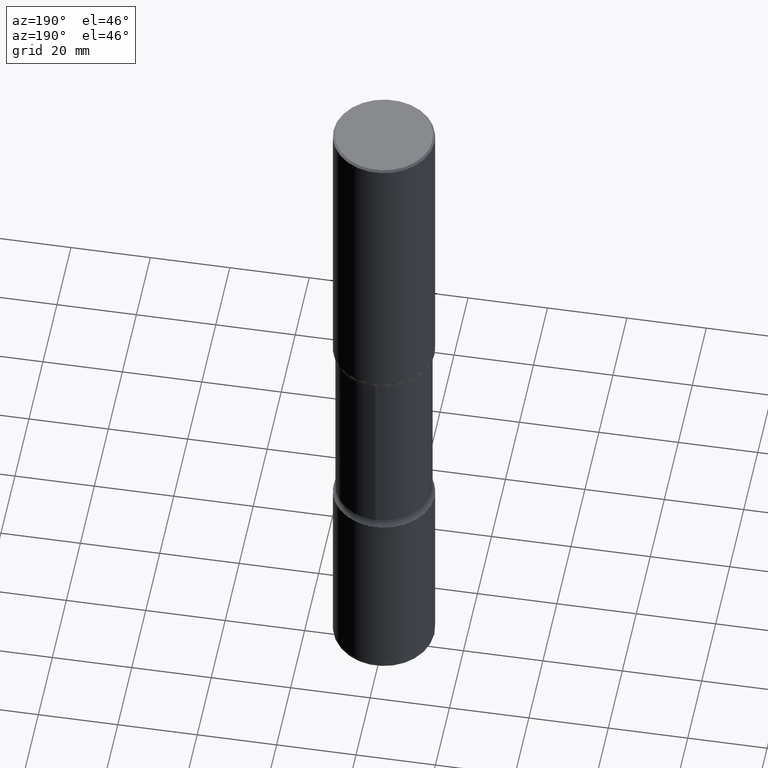
[diagram: clean part render]
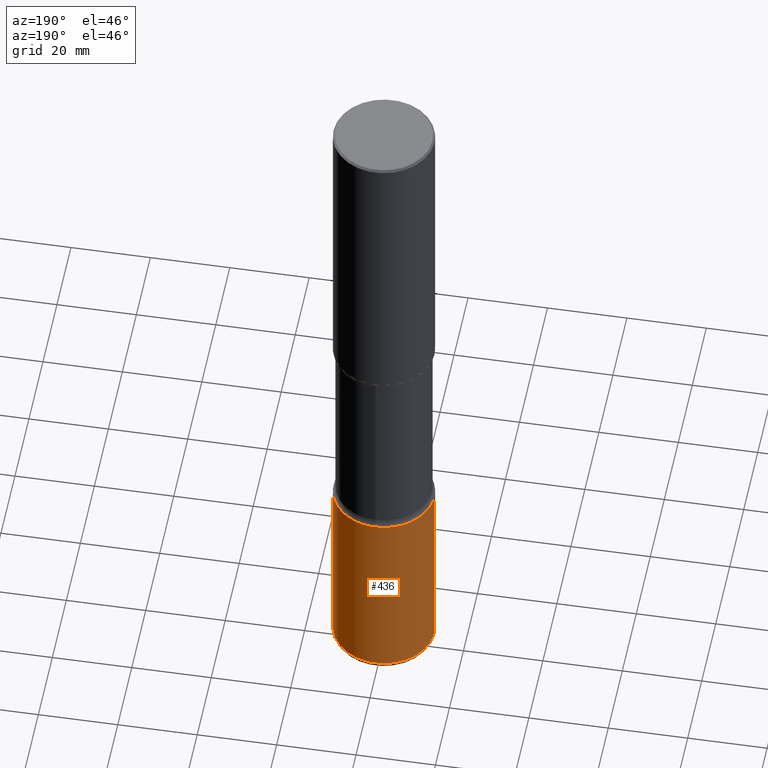
[diagram: same view with one face highlighted and labeled with its STEP entity id]
A machine part, auxiliary view. The second image highlights one B-rep face of the part: STEP entity #436.
In plain terms, the highlighted cylindrical surface (partial cylindrical patch) has radius 12.7 mm, axis along (-0, 0, 1).
Its self-contained STEP definition (entity closure, byte-faithful):
#8 = VERTEX_POINT ( 'NONE', #280 ) ;
#39 = VECTOR ( 'NONE', #510, 39.37007874015748143 ) ;
#42 = FACE_OUTER_BOUND ( 'NONE', #287, .T. ) ;
#48 = DIRECTION ( 'NONE',  ( 1.000000000000000000, -6.982962677686270655E-15, 0.000000000000000000 ) ) ;
#53 = CARTESIAN_POINT ( 'NONE',  ( 0.000000000000000000, 0.000000000000000000, 0.000000000000000000 ) ) ;
#64 = EDGE_CURVE ( 'NONE', #160, #8, #439, .T. ) ;
#123 = EDGE_CURVE ( 'NONE', #533, #8, #352, .T. ) ;
#126 = EDGE_CURVE ( 'NONE', #357, #160, #295, .T. ) ;
#131 = ORIENTED_EDGE ( 'NONE', *, *, #469, .T. ) ;
#143 = ORIENTED_EDGE ( 'NONE', *, *, #64, .F. ) ;
#144 = CARTESIAN_POINT ( 'NONE',  ( 0.5000000000000002220, -2.094888803305886009E-14, -4.999999999999999112 ) ) ;
#160 = VERTEX_POINT ( 'NONE', #144 ) ;
#175 = AXIS2_PLACEMENT_3D ( 'NONE', #53, #218, #221 ) ;
#191 = CARTESIAN_POINT ( 'NONE',  ( 1.222734403092568074E-28, -1.745740669421572673E-14, -4.999999999999999112 ) ) ;
#200 = VECTOR ( 'NONE', #433, 39.37007874015748143 ) ;
#211 = DIRECTION ( 'NONE',  ( -2.445468806185136597E-29, 3.491481338843145583E-15, 1.000000000000000000 ) ) ;
#218 = DIRECTION ( 'NONE',  ( -2.445468806185136597E-29, 3.491481338843145583E-15, 1.000000000000000000 ) ) ;
#221 = DIRECTION ( 'NONE',  ( 1.000000000000000000, -6.982962677686266711E-15, 4.876176775795935232E-29 ) ) ;
#243 = DIRECTION ( 'NONE',  ( 1.000000000000000000, -6.982962677686263555E-15, 0.000000000000000000 ) ) ;
#260 = CARTESIAN_POINT ( 'NONE',  ( 1.689818945073929451E-28, -2.412613605140613858E-14, -6.910000000000000142 ) ) ;
#265 = CYLINDRICAL_SURFACE ( 'NONE', #175, 0.5000000000000004441 ) ;
#274 = ORIENTED_EDGE ( 'NONE', *, *, #123, .T. ) ;
#280 = CARTESIAN_POINT ( 'NONE',  ( -0.5000000000000002220, -1.723905769401042541E-14, -4.999999999999999112 ) ) ;
#287 = EDGE_LOOP ( 'NONE', ( #131, #274, #143, #333 ) ) ;
#295 = LINE ( 'NONE', #427, #39 ) ;
#333 = ORIENTED_EDGE ( 'NONE', *, *, #126, .F. ) ;
#352 = LINE ( 'NONE', #467, #200 ) ;
#357 = VERTEX_POINT ( 'NONE', #365 ) ;
#365 = CARTESIAN_POINT ( 'NONE',  ( 0.5000000000000005551, -2.761761739024927509E-14, -6.910000000000000142 ) ) ;
#385 = CIRCLE ( 'NONE', #519, 0.5000000000000005551 ) ;
#398 = CARTESIAN_POINT ( 'NONE',  ( -0.5000000000000005551, -2.057342237260563133E-14, -6.910000000000000142 ) ) ;
#427 = CARTESIAN_POINT ( 'NONE',  ( 0.5000000000000004441, -3.491481338843136511E-15, 2.438088387897969858E-29 ) ) ;
#433 = DIRECTION ( 'NONE',  ( -2.445468806185136877E-29, 3.491481338843145188E-15, 1.000000000000000000 ) ) ;
#436 = ADVANCED_FACE ( 'NONE', ( #42 ), #265, .T. ) ;
#439 = CIRCLE ( 'NONE', #518, 0.5000000000000002220 ) ;
#465 = DIRECTION ( 'NONE',  ( -2.445468806185136597E-29, 3.491481338843145583E-15, 1.000000000000000000 ) ) ;
#467 = CARTESIAN_POINT ( 'NONE',  ( -0.5000000000000004441, 3.552713678800504085E-15, -2.459467545127455133E-29 ) ) ;
#469 = EDGE_CURVE ( 'NONE', #357, #533, #385, .T. ) ;
#510 = DIRECTION ( 'NONE',  ( -2.445468806185136877E-29, 3.491481338843145188E-15, 1.000000000000000000 ) ) ;
#518 = AXIS2_PLACEMENT_3D ( 'NONE', #191, #465, #243 ) ;
#519 = AXIS2_PLACEMENT_3D ( 'NONE', #260, #211, #48 ) ;
#533 = VERTEX_POINT ( 'NONE', #398 ) ;